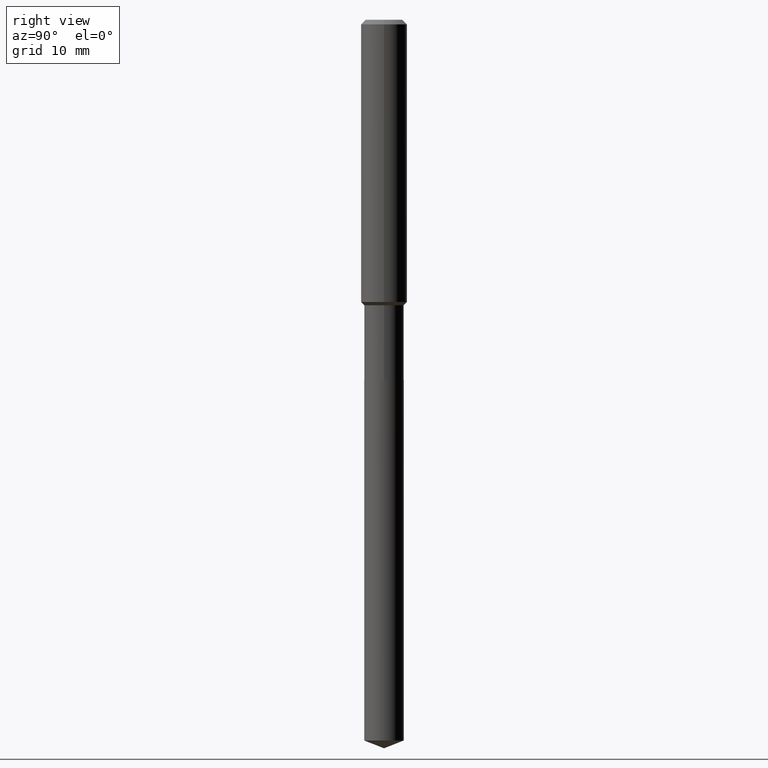
[diagram: clean part render]
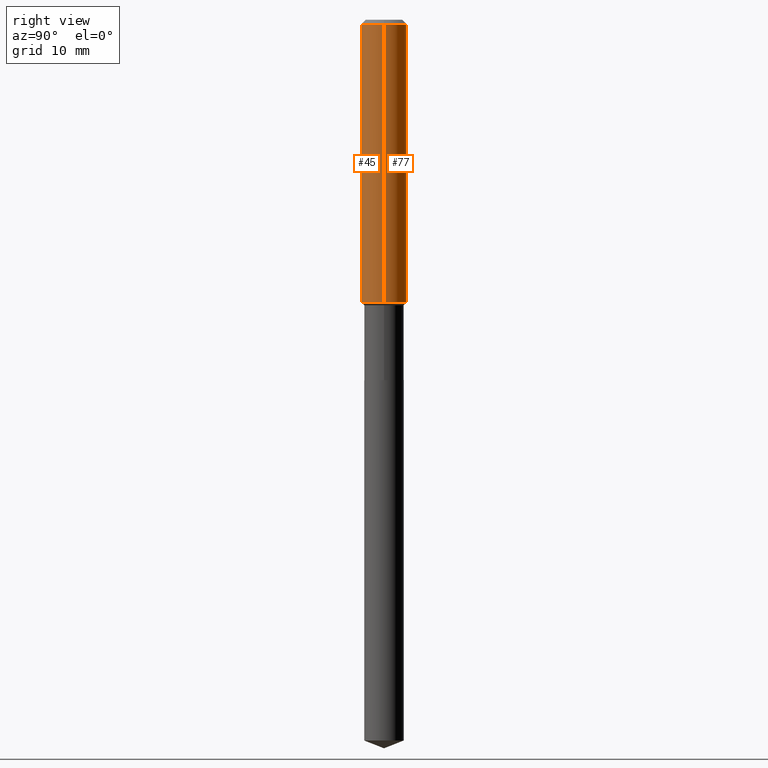
[diagram: same view with one multi-face feature highlighted, each face labeled with its STEP entity id]
A machine part, right view. The highlighted faces form ONE feature: a constant-radius fillet chain: 2 tangent blend faces with common blend radius 2.9997 mm. The faces share edges in the B-rep.
Their STEP definitions:
[1] entity #77 (Cylinder):
#10 = AXIS2_PLACEMENT_3D ( 'NONE', #221, #374, #31 ) ;
#31 = DIRECTION ( 'NONE',  ( 1.000000000000000000, -6.982962677686266711E-15, 4.876176775795936353E-29 ) ) ;
#42 = DIRECTION ( 'NONE',  ( 1.000000000000000000, -6.982962677686266711E-15, 0.000000000000000000 ) ) ;
#48 = ORIENTED_EDGE ( 'NONE', *, *, #110, .F. ) ;
#60 = CARTESIAN_POINT ( 'NONE',  ( 3.543606573602572639E-29, -5.059331034050661047E-15, -1.449050000000000171 ) ) ;
#65 = LINE ( 'NONE', #72, #414 ) ;
#71 = CYLINDRICAL_SURFACE ( 'NONE', #10, 0.1181000000000000799 ) ;
#72 = CARTESIAN_POINT ( 'NONE',  ( 0.1181000000000000799, -8.246878922347486570E-16, 5.758764772215004644E-30 ) ) ;
#73 = EDGE_CURVE ( 'NONE', #191, #427, #217, .T. ) ;
#77 = ADVANCED_FACE ( 'NONE', ( #338 ), #71, .T. ) ;
#104 = CARTESIAN_POINT ( 'NONE',  ( -0.1181000000000000799, 8.391509709326788873E-16, -5.809262341591047988E-30 ) ) ;
#110 = EDGE_CURVE ( 'NONE', #191, #330, #65, .T. ) ;
#131 = ORIENTED_EDGE ( 'NONE', *, *, #73, .T. ) ;
#133 = ORIENTED_EDGE ( 'NONE', *, *, #203, .T. ) ;
#148 = DIRECTION ( 'NONE',  ( -2.445468806185136877E-29, 3.491481338843145188E-15, 1.000000000000000000 ) ) ;
#153 = CARTESIAN_POINT ( 'NONE',  ( -0.1180999999999999966, -1.731748940704388872E-15, -0.02362000000000014088 ) ) ;
#191 = VERTEX_POINT ( 'NONE', #484 ) ;
#203 = EDGE_CURVE ( 'NONE', #427, #275, #226, .T. ) ;
#217 = CIRCLE ( 'NONE', #282, 0.1181000000000001632 ) ;
#221 = CARTESIAN_POINT ( 'NONE',  ( 0.000000000000000000, 0.000000000000000000, 0.000000000000000000 ) ) ;
#226 = LINE ( 'NONE', #104, #452 ) ;
#258 = DIRECTION ( 'NONE',  ( 1.000000000000000000, -6.982962677686270655E-15, 0.000000000000000000 ) ) ;
#259 = DIRECTION ( 'NONE',  ( -2.445468806185136877E-29, 3.491481338843145188E-15, 1.000000000000000000 ) ) ;
#273 = ORIENTED_EDGE ( 'NONE', *, *, #397, .F. ) ;
#275 = VERTEX_POINT ( 'NONE', #153 ) ;
#282 = AXIS2_PLACEMENT_3D ( 'NONE', #60, #304, #258 ) ;
#283 = CARTESIAN_POINT ( 'NONE',  ( -0.1181000000000001632, -4.220180063117982061E-15, -1.449050000000000171 ) ) ;
#292 = EDGE_LOOP ( 'NONE', ( #131, #133, #273, #48 ) ) ;
#304 = DIRECTION ( 'NONE',  ( -2.445468806185136597E-29, 3.491481338843145583E-15, 1.000000000000000000 ) ) ;
#318 = CARTESIAN_POINT ( 'NONE',  ( 0.1180999999999999966, -9.071566814582237199E-16, -0.02362000000000014088 ) ) ;
#330 = VERTEX_POINT ( 'NONE', #318 ) ;
#338 = FACE_OUTER_BOUND ( 'NONE', #292, .T. ) ;
#360 = CIRCLE ( 'NONE', #468, 0.1180999999999999966 ) ;
#374 = DIRECTION ( 'NONE',  ( -2.445468806185136597E-29, 3.491481338843145583E-15, 1.000000000000000000 ) ) ;
#385 = DIRECTION ( 'NONE',  ( -2.445468806185136597E-29, 3.491481338843145583E-15, 1.000000000000000000 ) ) ;
#397 = EDGE_CURVE ( 'NONE', #330, #275, #360, .T. ) ;
#414 = VECTOR ( 'NONE', #148, 39.37007874015748143 ) ;
#427 = VERTEX_POINT ( 'NONE', #283 ) ;
#433 = CARTESIAN_POINT ( 'NONE',  ( 5.776197320209327532E-31, -8.246878922347559293E-17, -0.02362000000000014088 ) ) ;
#452 = VECTOR ( 'NONE', #259, 39.37007874015748143 ) ;
#468 = AXIS2_PLACEMENT_3D ( 'NONE', #433, #385, #42 ) ;
#484 = CARTESIAN_POINT ( 'NONE',  ( 0.1181000000000001632, -5.884018926285410098E-15, -1.449050000000000171 ) ) ;
[2] entity #45 (Cylinder):
#29 = DIRECTION ( 'NONE',  ( -2.445468806185136597E-29, 3.491481338843145583E-15, 1.000000000000000000 ) ) ;
#33 = EDGE_CURVE ( 'NONE', #275, #330, #365, .T. ) ;
#45 = ADVANCED_FACE ( 'NONE', ( #371 ), #402, .T. ) ;
#63 = DIRECTION ( 'NONE',  ( 1.000000000000000000, -6.982962677686266711E-15, 0.000000000000000000 ) ) ;
#65 = LINE ( 'NONE', #72, #414 ) ;
#72 = CARTESIAN_POINT ( 'NONE',  ( 0.1181000000000000799, -8.246878922347486570E-16, 5.758764772215004644E-30 ) ) ;
#80 = DIRECTION ( 'NONE',  ( -2.445468806185136597E-29, 3.491481338843145583E-15, 1.000000000000000000 ) ) ;
#89 = AXIS2_PLACEMENT_3D ( 'NONE', #401, #29, #177 ) ;
#104 = CARTESIAN_POINT ( 'NONE',  ( -0.1181000000000000799, 8.391509709326788873E-16, -5.809262341591047988E-30 ) ) ;
#110 = EDGE_CURVE ( 'NONE', #191, #330, #65, .T. ) ;
#148 = DIRECTION ( 'NONE',  ( -2.445468806185136877E-29, 3.491481338843145188E-15, 1.000000000000000000 ) ) ;
#153 = CARTESIAN_POINT ( 'NONE',  ( -0.1180999999999999966, -1.731748940704388872E-15, -0.02362000000000014088 ) ) ;
#164 = ORIENTED_EDGE ( 'NONE', *, *, #33, .F. ) ;
#177 = DIRECTION ( 'NONE',  ( 1.000000000000000000, -6.982962677686266711E-15, 4.876176775795936353E-29 ) ) ;
#191 = VERTEX_POINT ( 'NONE', #484 ) ;
#203 = EDGE_CURVE ( 'NONE', #427, #275, #226, .T. ) ;
#226 = LINE ( 'NONE', #104, #452 ) ;
#259 = DIRECTION ( 'NONE',  ( -2.445468806185136877E-29, 3.491481338843145188E-15, 1.000000000000000000 ) ) ;
#261 = AXIS2_PLACEMENT_3D ( 'NONE', #425, #80, #461 ) ;
#275 = VERTEX_POINT ( 'NONE', #153 ) ;
#279 = ORIENTED_EDGE ( 'NONE', *, *, #203, .F. ) ;
#283 = CARTESIAN_POINT ( 'NONE',  ( -0.1181000000000001632, -4.220180063117982061E-15, -1.449050000000000171 ) ) ;
#318 = CARTESIAN_POINT ( 'NONE',  ( 0.1180999999999999966, -9.071566814582237199E-16, -0.02362000000000014088 ) ) ;
#319 = CIRCLE ( 'NONE', #261, 0.1181000000000001632 ) ;
#325 = AXIS2_PLACEMENT_3D ( 'NONE', #410, #366, #63 ) ;
#330 = VERTEX_POINT ( 'NONE', #318 ) ;
#356 = EDGE_LOOP ( 'NONE', ( #279, #441, #477, #164 ) ) ;
#365 = CIRCLE ( 'NONE', #325, 0.1180999999999999966 ) ;
#366 = DIRECTION ( 'NONE',  ( -2.445468806185136597E-29, 3.491481338843145583E-15, 1.000000000000000000 ) ) ;
#371 = FACE_OUTER_BOUND ( 'NONE', #356, .T. ) ;
#401 = CARTESIAN_POINT ( 'NONE',  ( 0.000000000000000000, 0.000000000000000000, 0.000000000000000000 ) ) ;
#402 = CYLINDRICAL_SURFACE ( 'NONE', #89, 0.1181000000000000799 ) ;
#410 = CARTESIAN_POINT ( 'NONE',  ( 5.776197320209327532E-31, -8.246878922347559293E-17, -0.02362000000000014088 ) ) ;
#414 = VECTOR ( 'NONE', #148, 39.37007874015748143 ) ;
#425 = CARTESIAN_POINT ( 'NONE',  ( 3.543606573602572639E-29, -5.059331034050661047E-15, -1.449050000000000171 ) ) ;
#426 = EDGE_CURVE ( 'NONE', #427, #191, #319, .T. ) ;
#427 = VERTEX_POINT ( 'NONE', #283 ) ;
#441 = ORIENTED_EDGE ( 'NONE', *, *, #426, .T. ) ;
#452 = VECTOR ( 'NONE', #259, 39.37007874015748143 ) ;
#461 = DIRECTION ( 'NONE',  ( 1.000000000000000000, -6.982962677686270655E-15, 0.000000000000000000 ) ) ;
#477 = ORIENTED_EDGE ( 'NONE', *, *, #110, .T. ) ;
#484 = CARTESIAN_POINT ( 'NONE',  ( 0.1181000000000001632, -5.884018926285410098E-15, -1.449050000000000171 ) ) ;